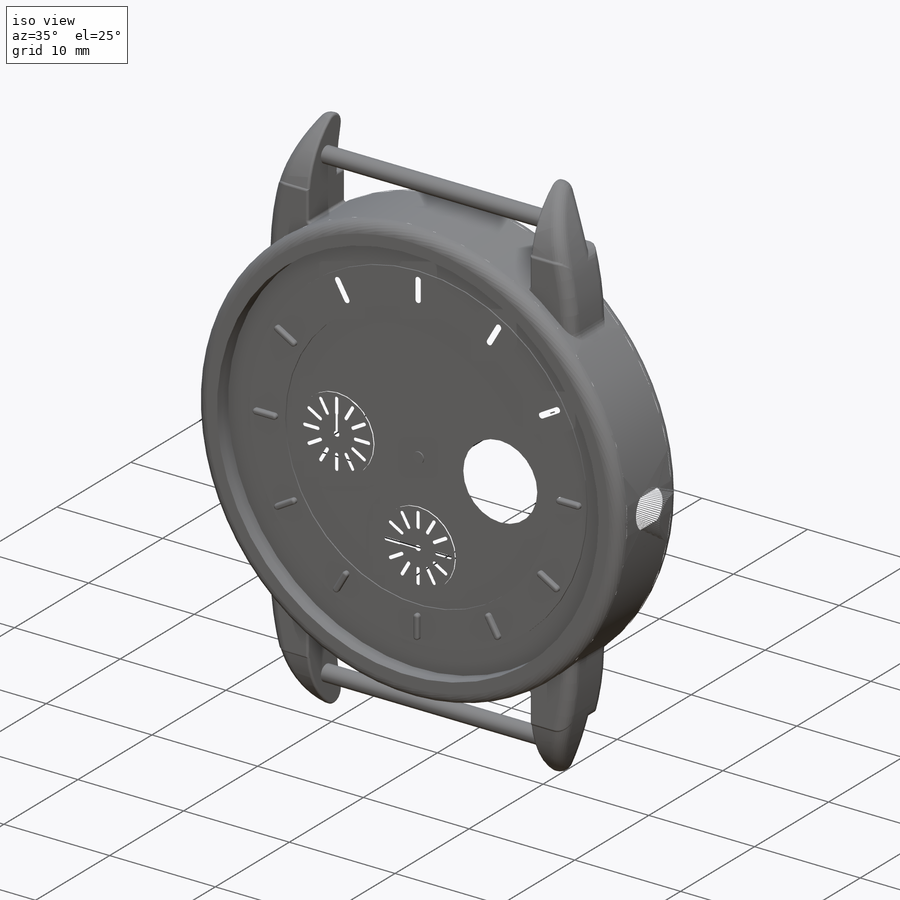
[diagram: iso view]
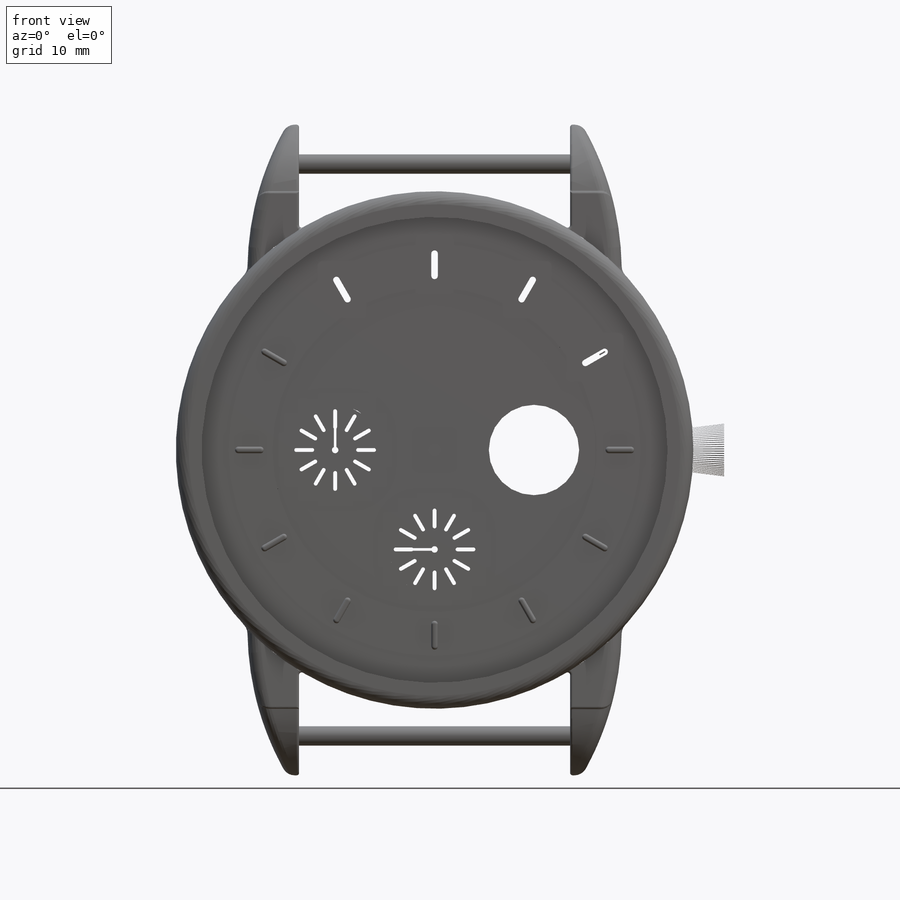
[diagram: front view]
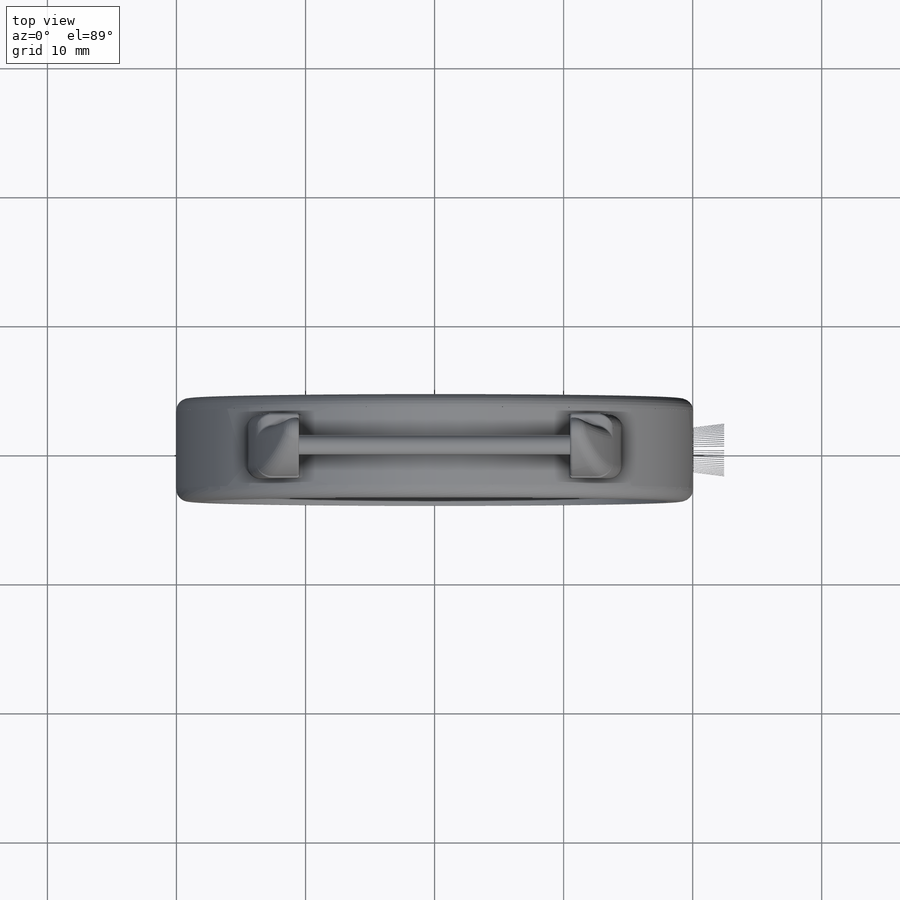
[diagram: top view]
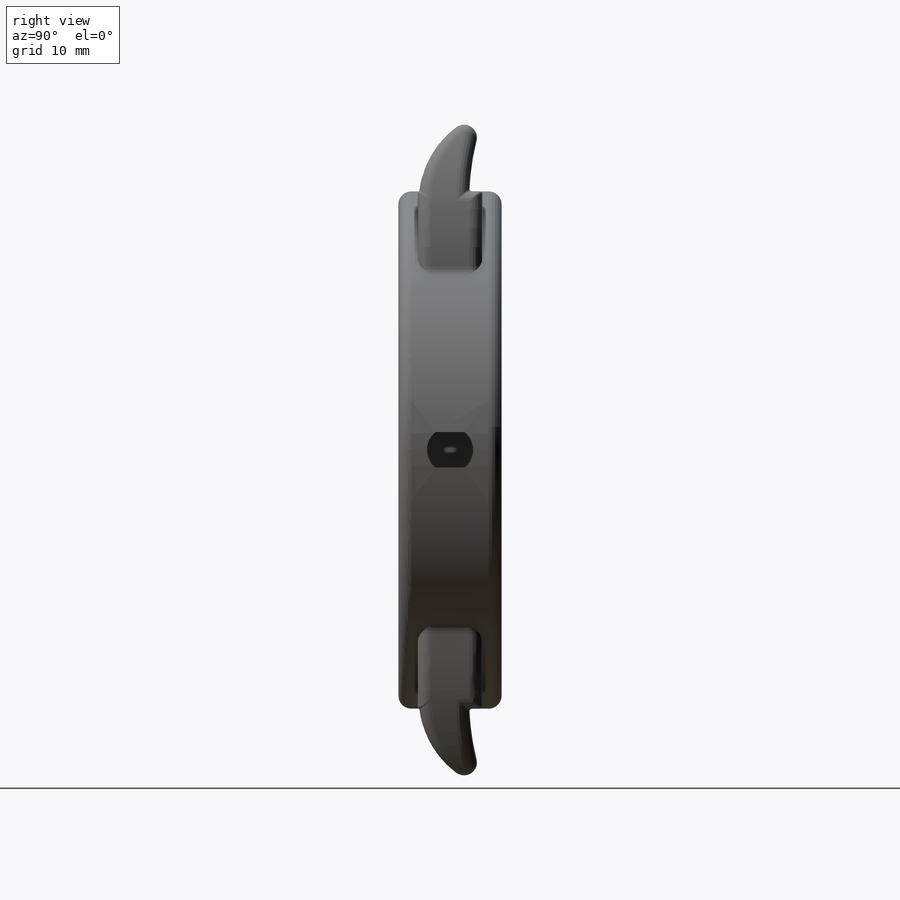
[diagram: right view]
SOLIDWORKS PART (.sldprt)
format: sldprt  version: not decoded by parser v0  size: 2,523,648 bytes
history: native  units: mm
features: fillet x21, sketch x20, extrude x13, cut_extrude x4, plane x3, pattern_circular x3, material x1, mirror x1, dome x1 (+11 scaffold rows collapsed)
feature tree (78):
  scaffold x11  (default folders/planes/origin — collapsed)
  material  "Material <not specified>"
  sketch  "Sketch1"  dims[D1=40.0mm]
  extrude  "Boss-Extrude1"  Depth=8mm
  sketch  "Sketch2"  dims[D1=2.0mm]
  cut_extrude  "Cut-Extrude1"  Depth=6mm
  sketch  "Sketch3"  dims[D1=2.0mm]
  cut_extrude  "Cut-Extrude2"  Depth=1.5mm
  sketch  "Sketch4"  dims[D1=1.0mm]
  cut_extrude  "Cut-Extrude3"  [1 undecoded]
  sketch  "Sketch5"  dims[D1=10.5mm D2=8.0mm D3=2.0mm D4=2.0mm]
  extrude  "Boss-Extrude2"  Depth=5mm
  sketch  "Sketch6"  dims[D1=1.5mm D2=1.0mm]
  cut_extrude  "Cut-Extrude6"  Depth=60mm
  fillet  "Fillet1"  Radius=1mm
  fillet  "Fillet2"  Radius=1mm
  fillet  "Fillet3"  Radius=1mm
  fillet  "Fillet4"  Radius=1mm
  fillet  "Fillet5"  Radius=1mm
  fillet  "Fillet6"  Radius=1mm
  fillet  "Fillet7"  Radius=0.2mm
  fillet  "Fillet8"  Radius=0.2mm
  fillet  "Fillet9"  Radius=0.2mm
  fillet  "Fillet10"  Radius=0.2mm
  fillet  "Fillet11"  Radius=0.2mm
  fillet  "Fillet12"  Radius=0.2mm
  fillet  "Fillet13"  Radius=0.2mm
  plane  "Plane1"  Offset=20mm
  mirror  "Mirror1"
  fillet  "Fillet14"  Radius=1mm
  fillet  "Fillet15"  Radius=1mm
  fillet  "Fillet16"  Radius=0.2mm
  fillet  "Fillet17"  Radius=0.2mm
  fillet  "Fillet18"  Radius=0.2mm
  sketch  "Sketch9"  dims[D1=2.0mm]
  sketch  "Sketch10"  dims[D1=3.0mm D2=12.0]
  extrude  "Boss-Extrude4"  Depth=0.5mm
  fillet  "Fillet19"  Radius=0.2mm
  pattern_circular  "CirPattern2"  Count=12 Angle=30deg
  fillet  "Fillet20"  Radius=0.2mm
  sketch  "Sketch12"  dims[D1=1.5mm D2=1.5mm]
  extrude  "Boss-Extrude6"  [1 undecoded]
  sketch  "Sketch13"  dims[D1=3.4mm]
  extrude  "Boss-Extrude7"  Depth=0.1mm
  sketch  "Sketch14"  dims[D1=7.0mm D2=12.0 D3=3.0]
  extrude  "Boss-Extrude8"  [1 undecoded]
  sketch  "Sketch15"
  extrude  "Boss-Extrude9"  [1 undecoded]
  sketch  "Sketch16"  dims[D1=0.4mm D2=0.8mm]
  extrude  "Boss-Extrude10"  [1 undecoded]
  sketch  "Sketch17"  dims[D1=0.4mm D2=0.8mm]
  extrude  "Boss-Extrude11"  Depth=0.1mm
  sketch  "Sketch18"  dims[D1=0.2mm D2=0.4mm]
  extrude  "Boss-Extrude12"  Depth=0.1mm
  sketch  "Sketch19"  dims[D1=0.5mm D2=~0.203622mm D3=0.2mm]
  extrude  "Boss-Extrude13"  Depth=0.1mm
  pattern_circular  "CirPattern3"  Count=4 Angle=180deg
  sketch  "Sketch20"  dims[D1=0.5mm D2=0.1mm D3=0.2mm]
  extrude  "Boss-Extrude14"  Depth=0.1mm
  plane  "Plane2"  Offset=20mm
  sketch  "Sketch21"  dims[D1=3.5mm]
  extrude  "Boss-Extrude15"  Depth=3mm
  fillet  "Fillet21"  Radius=0.5mm
  dome  "Dome1"
  sketch  "Sketch22"  dims[D1=0.1mm]
  plane  "Plane3"
  sketch  "Sketch23"  dims[D1=0.1mm]
  pattern_circular  "CirPattern7"  Count=72 Angle=5deg
decode coverage: 55 of 63 modeling features carry decoded parameters
note: ~ marks probable driven/reference dimensions
note: 5 parameter values undecoded
summary: no parameter record found for 5 features
note: suppression state not decoded; provenance and decode notes live in map.json
